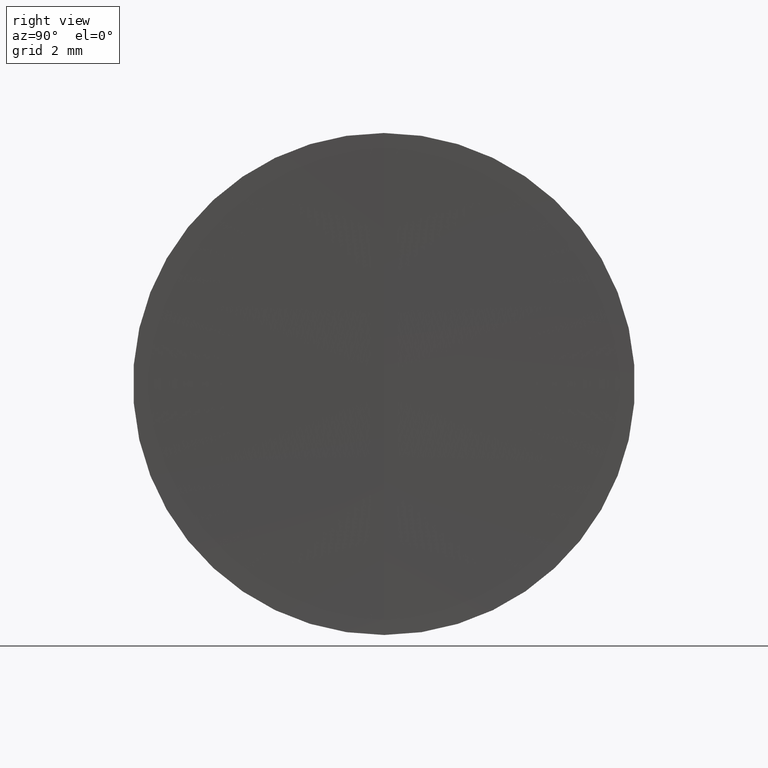
[diagram: clean part render]
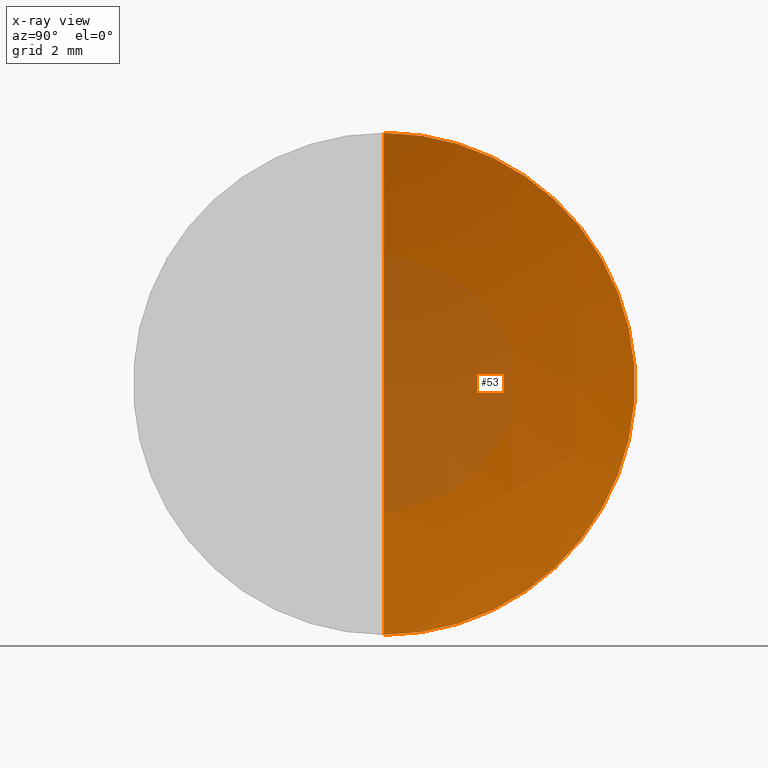
[diagram: x-ray — body ghosted, one internal face saturated and labeled with its STEP entity id]
A machine part, right view, then the same camera in x-ray: the body is ghosted and one INTERNAL B-rep face — a face not visible from any outside direction — is saturated and labeled: STEP entity #53.
In plain terms, the highlighted spherical surface has radius 25.6 mm.
Its self-contained STEP definition (entity closure, byte-faithful):
#32 = CARTESIAN_POINT ( 'NONE',  ( 253.6920414512665600, 0.0000000000000000000, -9.169884016334362900E-022 ) ) ;
#47 = CARTESIAN_POINT ( 'NONE',  ( 228.8920918545435900, 7.776507174585745400E-016, -6.350000000000084900 ) ) ;
#53 = ADVANCED_FACE ( 'NONE', ( #246 ), #233, .F. ) ;
#61 = CIRCLE ( 'NONE', #112, 25.59999999999999100 ) ;
#67 = ORIENTED_EDGE ( 'NONE', *, *, #98, .F. ) ;
#83 = DIRECTION ( 'NONE',  ( 0.0000000000000000000, 1.224646799147353200E-016, -1.000000000000000000 ) ) ;
#98 = EDGE_CURVE ( 'NONE', #262, #162, #210, .T. ) ;
#112 = AXIS2_PLACEMENT_3D ( 'NONE', #321, #247, #83 ) ;
#131 = EDGE_CURVE ( 'NONE', #304, #162, #61, .T. ) ;
#162 = VERTEX_POINT ( 'NONE', #255 ) ;
#170 = ORIENTED_EDGE ( 'NONE', *, *, #194, .F. ) ;
#174 = EDGE_LOOP ( 'NONE', ( #170, #282, #67 ) ) ;
#194 = EDGE_CURVE ( 'NONE', #304, #262, #286, .T. ) ;
#199 = DIRECTION ( 'NONE',  ( -0.0000000000000000000, -1.000000000000000000, -0.0000000000000000000 ) ) ;
#210 = CIRCLE ( 'NONE', #287, 25.59999999999999100 ) ;
#213 = DIRECTION ( 'NONE',  ( 0.0000000000000000000, 0.0000000000000000000, 1.000000000000000000 ) ) ;
#220 = AXIS2_PLACEMENT_3D ( 'NONE', #221, #243, #213 ) ;
#221 = CARTESIAN_POINT ( 'NONE',  ( 228.8920918545435900, 0.0000000000000000000, -4.219670333576331500E-014 ) ) ;
#228 = CARTESIAN_POINT ( 'NONE',  ( 253.6920414512665600, 0.0000000000000000000, -9.169884016334362900E-022 ) ) ;
#233 = SPHERICAL_SURFACE ( 'NONE', #325, 25.59999999999999100 ) ;
#243 = DIRECTION ( 'NONE',  ( -1.000000000000000000, -0.0000000000000000000, 1.836970198721029700E-016 ) ) ;
#246 = FACE_OUTER_BOUND ( 'NONE', #174, .T. ) ;
#247 = DIRECTION ( 'NONE',  ( -2.249639673992786400E-032, -1.000000000000000000, -1.224646799147353200E-016 ) ) ;
#255 = CARTESIAN_POINT ( 'NONE',  ( 228.0920414512665700, 0.0000000000000000000, 3.135094888828820600E-015 ) ) ;
#262 = VERTEX_POINT ( 'NONE', #47 ) ;
#263 = DIRECTION ( 'NONE',  ( -0.0000000000000000000, 1.000000000000000000, 0.0000000000000000000 ) ) ;
#282 = ORIENTED_EDGE ( 'NONE', *, *, #131, .T. ) ;
#286 = CIRCLE ( 'NONE', #220, 6.350000000000042300 ) ;
#287 = AXIS2_PLACEMENT_3D ( 'NONE', #32, #263, #324 ) ;
#304 = VERTEX_POINT ( 'NONE', #307 ) ;
#307 = CARTESIAN_POINT ( 'NONE',  ( 228.8920918545435900, 0.0000000000000000000, 6.349999999999999600 ) ) ;
#321 = CARTESIAN_POINT ( 'NONE',  ( 253.6920414512665600, 0.0000000000000000000, -9.169884016334362900E-022 ) ) ;
#324 = DIRECTION ( 'NONE',  ( 0.0000000000000000000, 0.0000000000000000000, 1.000000000000000000 ) ) ;
#325 = AXIS2_PLACEMENT_3D ( 'NONE', #228, #199, #328 ) ;
#328 = DIRECTION ( 'NONE',  ( 0.0000000000000000000, 0.0000000000000000000, -1.000000000000000000 ) ) ;